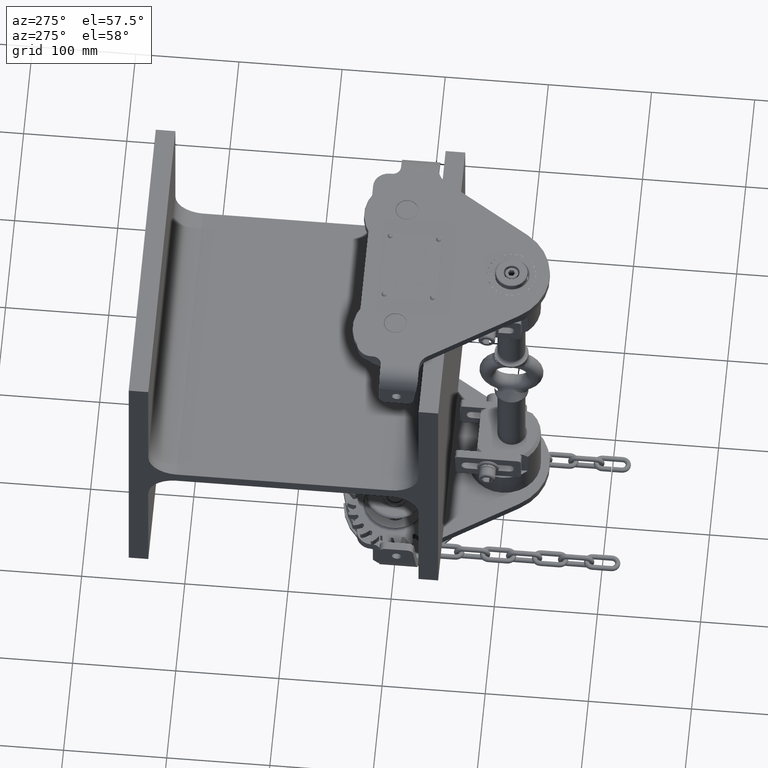
[diagram: clean part render]
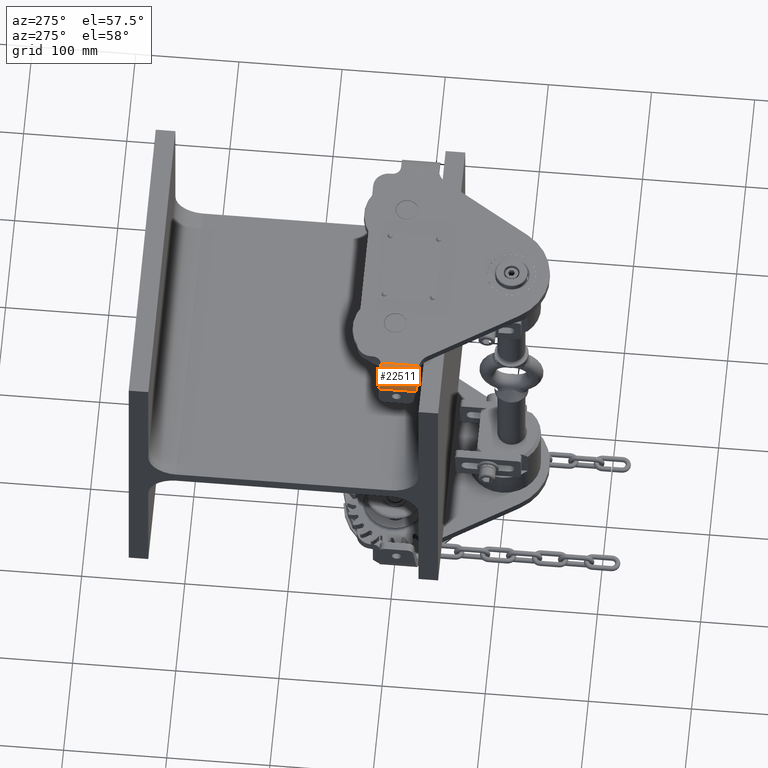
[diagram: same view with one face highlighted and labeled with its STEP entity id]
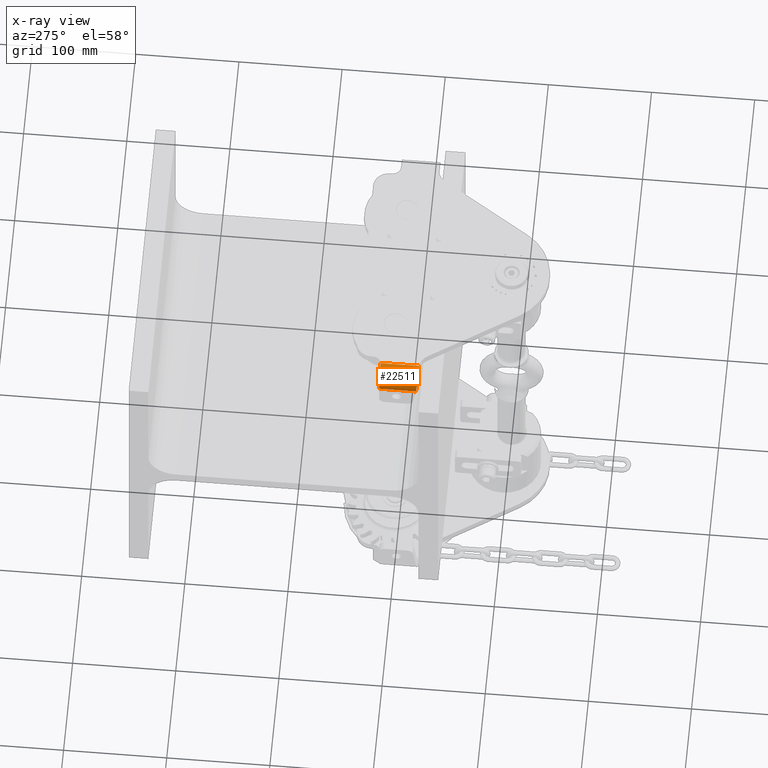
[diagram: x-ray of the same camera — body ghosted, the highlighted face saturated]
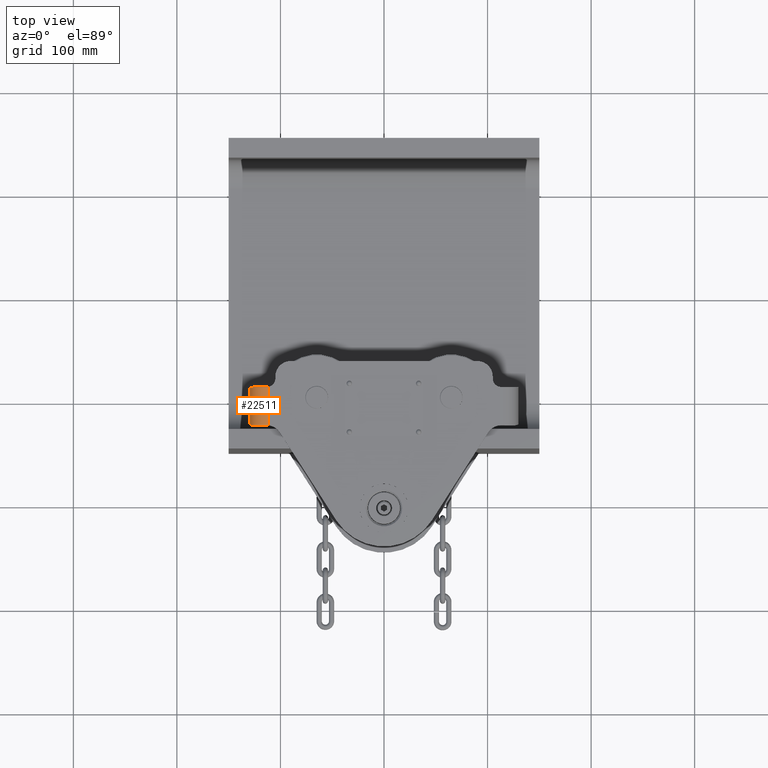
[diagram: same view with one face highlighted and labeled with its STEP entity id]
A machine part, auxiliary view. The second image highlights one B-rep face of the part: STEP entity #22511.
The next image is the same camera in x-ray: the body ghosted, the highlighted face saturated — about 0% of this face is hidden behind the body in this view.
A second angle (top view) of the same face is appended — the face is thin or edge-on in the first view.
In plain terms, the highlighted cylindrical surface (edge-blend (fillet) strip) has radius 18 mm, axis along (0, 1, 0).
Its self-contained STEP definition (entity closure, byte-faithful):
#261 = ORIENTED_EDGE ( 'NONE', *, *, #18066, .F. ) ;
#1002 = DIRECTION ( 'NONE',  ( 1.221225980241555500E-033, 1.000000000000000000, 4.284410926258889500E-017 ) ) ;
#1440 =( BOUNDED_CURVE ( )  B_SPLINE_CURVE ( 3, ( #9018, #21497, #37191, #45560 ),
 .UNSPECIFIED., .F., .F. ) 
 B_SPLINE_CURVE_WITH_KNOTS ( ( 4, 4 ),
 ( 4.123358010168418600, 4.712388980384689700 ),
 .UNSPECIFIED. ) 
 CURVE ( )  GEOMETRIC_REPRESENTATION_ITEM ( )  RATIONAL_B_SPLINE_CURVE ( ( 1.000000000000000000, 0.9712952651971048500, 0.9712952651971048500, 1.000000000000000000 ) ) 
 REPRESENTATION_ITEM ( '' )  );
#2290 = CARTESIAN_POINT ( 'NONE',  ( -112.0000000000004000, -244.9999999999998600, 172.9999999999976400 ) ) ;
#3005 = VECTOR ( 'NONE', #6543, 1000.000000000000000 ) ;
#3397 = DIRECTION ( 'NONE',  ( -1.000000000000000000, 0.0000000000000000000, 0.0000000000000000000 ) ) ;
#3885 = VERTEX_POINT ( 'NONE', #33329 ) ;
#6543 = DIRECTION ( 'NONE',  ( 1.221225980241556200E-033, 1.000000000000000000, 4.284410926258890200E-017 ) ) ;
#7309 = CARTESIAN_POINT ( 'NONE',  ( -112.0000000000003800, -244.9999999999998600, 154.9999999999976100 ) ) ;
#7681 = CARTESIAN_POINT ( 'NONE',  ( -130.0000000000004000, -244.9999999999998600, 154.9999999999976100 ) ) ;
#7855 = DIRECTION ( 'NONE',  ( 1.221225980241556200E-033, 1.000000000000000000, 4.284410926258890200E-017 ) ) ;
#8536 = EDGE_CURVE ( 'NONE', #50804, #19273, #13719, .T. ) ;
#9018 = CARTESIAN_POINT ( 'NONE',  ( -126.9666295470962000, -127.9999999999998900, 164.9999999999976100 ) ) ;
#9587 = DIRECTION ( 'NONE',  ( -1.000000000000000000, -1.541976423090491500E-015, -1.541976423090491500E-015 ) ) ;
#9917 = CARTESIAN_POINT ( 'NONE',  ( -112.0000000000003800, -90.99999999999991500, 154.9999999999976400 ) ) ;
#12088 = ORIENTED_EDGE ( 'NONE', *, *, #28940, .T. ) ;
#13024 = LINE ( 'NONE', #7681, #16857 ) ;
#13719 = B_SPLINE_CURVE_WITH_KNOTS ( 'NONE', 3,
 ( #16470, #21204, #28597, #20506 ),
 .UNSPECIFIED., .F., .F.,
 ( 4, 4 ),
 ( 0.0000000000000000000, 0.001002352167099082400 ),
 .UNSPECIFIED. ) ;
#14054 = ORIENTED_EDGE ( 'NONE', *, *, #15919, .T. ) ;
#14856 = CIRCLE ( 'NONE', #42315, 18.00000000000004300 ) ;
#15919 = EDGE_CURVE ( 'NONE', #24379, #25487, #41743, .T. ) ;
#16470 = CARTESIAN_POINT ( 'NONE',  ( -112.0000000000004000, -90.93725393319363100, 172.9999999999976400 ) ) ;
#16857 = VECTOR ( 'NONE', #7855, 1000.000000000000000 ) ;
#18066 = EDGE_CURVE ( 'NONE', #24379, #3885, #1440, .T. ) ;
#18918 = ORIENTED_EDGE ( 'NONE', *, *, #8536, .T. ) ;
#19072 = VERTEX_POINT ( 'NONE', #49916 ) ;
#19273 = VERTEX_POINT ( 'NONE', #31223 ) ;
#20506 = CARTESIAN_POINT ( 'NONE',  ( -113.0000000000004000, -90.99999999999982900, 172.9722007556090700 ) ) ;
#21072 = EDGE_CURVE ( 'NONE', #19072, #50804, #35750, .T. ) ;
#21204 = CARTESIAN_POINT ( 'NONE',  ( -112.3322765559452700, -90.97911684431397800, 172.9999999999976400 ) ) ;
#21273 = EDGE_LOOP ( 'NONE', ( #261, #14054, #40526, #41135, #18918, #12088, #36234 ) ) ;
#21497 = CARTESIAN_POINT ( 'NONE',  ( -128.9589947356576000, -127.5809214016535500, 162.0181008300247100 ) ) ;
#22407 = DIRECTION ( 'NONE',  ( 1.836766033387214100E-015, -1.000000000000000000, -4.284410926258898800E-017 ) ) ;
#22511 = ADVANCED_FACE ( 'NONE', ( #46367 ), #34915, .T. ) ;
#23110 = DIRECTION ( 'NONE',  ( 1.221225980241556200E-033, 1.000000000000000000, 4.284410926258890200E-017 ) ) ;
#24379 = VERTEX_POINT ( 'NONE', #47036 ) ;
#25129 = CARTESIAN_POINT ( 'NONE',  ( -112.0000000000003800, -127.9999999999998900, 154.9999999999976100 ) ) ;
#25487 = VERTEX_POINT ( 'NONE', #44016 ) ;
#28408 = B_SPLINE_CURVE_WITH_KNOTS ( 'NONE', 3,
 ( #40409, #40226, #52273, #44309 ),
 .UNSPECIFIED., .F., .F.,
 ( 4, 4 ),
 ( 0.0000000000000000000, 0.001209109755196687200 ),
 .UNSPECIFIED. ) ;
#28597 = CARTESIAN_POINT ( 'NONE',  ( -112.6656139365030100, -90.99999999999985800, 172.9908064938847800 ) ) ;
#28940 = EDGE_CURVE ( 'NONE', #19273, #29569, #14856, .T. ) ;
#29569 = VERTEX_POINT ( 'NONE', #50487 ) ;
#30266 = AXIS2_PLACEMENT_3D ( 'NONE', #7309, #23110, #3397 ) ;
#30817 = AXIS2_PLACEMENT_3D ( 'NONE', #25129, #1002, #41727 ) ;
#31223 = CARTESIAN_POINT ( 'NONE',  ( -113.0000000000004000, -90.99999999999982900, 172.9722007556090700 ) ) ;
#31897 = CARTESIAN_POINT ( 'NONE',  ( -112.0000000000004000, -90.93725393319363100, 172.9999999999976400 ) ) ;
#33329 = CARTESIAN_POINT ( 'NONE',  ( -130.0000000000004000, -126.5945916529760400, 154.9999999999976400 ) ) ;
#34915 = CYLINDRICAL_SURFACE ( 'NONE', #30266, 18.00000000000004300 ) ;
#35750 = LINE ( 'NONE', #2290, #3005 ) ;
#36234 = ORIENTED_EDGE ( 'NONE', *, *, #40877, .F. ) ;
#37191 = CARTESIAN_POINT ( 'NONE',  ( -130.0000000000004000, -127.0986072529143600, 158.5862573394082300 ) ) ;
#38771 = EDGE_CURVE ( 'NONE', #25487, #19072, #28408, .T. ) ;
#40226 = CARTESIAN_POINT ( 'NONE',  ( -112.8047671777664500, -127.9999999999998900, 172.9865292766535000 ) ) ;
#40409 = CARTESIAN_POINT ( 'NONE',  ( -113.2074490356482000, -127.9999999999998900, 172.9594561951699300 ) ) ;
#40526 = ORIENTED_EDGE ( 'NONE', *, *, #38771, .T. ) ;
#40877 = EDGE_CURVE ( 'NONE', #3885, #29569, #13024, .T. ) ;
#41135 = ORIENTED_EDGE ( 'NONE', *, *, #21072, .T. ) ;
#41727 = DIRECTION ( 'NONE',  ( 1.000000000000000000, 0.0000000000000000000, 3.083952846180980600E-015 ) ) ;
#41743 = CIRCLE ( 'NONE', #30817, 18.00000000000005700 ) ;
#42315 = AXIS2_PLACEMENT_3D ( 'NONE', #9917, #22407, #9587 ) ;
#44016 = CARTESIAN_POINT ( 'NONE',  ( -113.2074490356482000, -127.9999999999998900, 172.9594561951699300 ) ) ;
#44309 = CARTESIAN_POINT ( 'NONE',  ( -112.0000000000004000, -128.0486767533332700, 172.9999999999976400 ) ) ;
#45560 = CARTESIAN_POINT ( 'NONE',  ( -130.0000000000004000, -126.5945916529760400, 154.9999999999976400 ) ) ;
#46367 = FACE_OUTER_BOUND ( 'NONE', #21273, .T. ) ;
#47036 = CARTESIAN_POINT ( 'NONE',  ( -126.9666295470962000, -127.9999999999998900, 164.9999999999976100 ) ) ;
#49916 = CARTESIAN_POINT ( 'NONE',  ( -112.0000000000004000, -128.0486767533332700, 172.9999999999976400 ) ) ;
#50487 = CARTESIAN_POINT ( 'NONE',  ( -130.0000000000004000, -90.99999999999994300, 154.9999999999976400 ) ) ;
#50804 = VERTEX_POINT ( 'NONE', #31897 ) ;
#52273 = CARTESIAN_POINT ( 'NONE',  ( -112.4022812199212800, -128.0161890555530100, 172.9999999999976400 ) ) ;